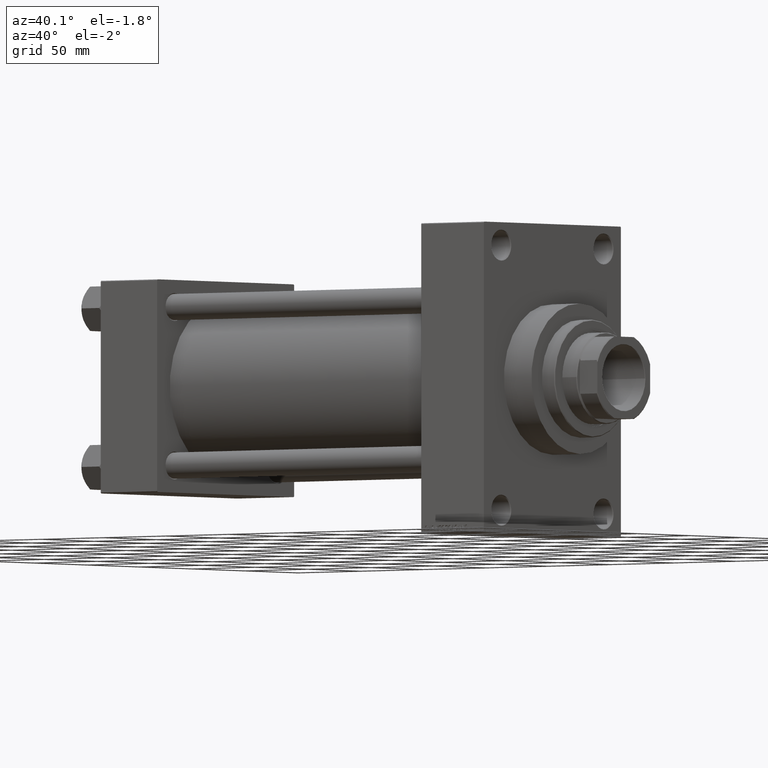
[diagram: clean part render]
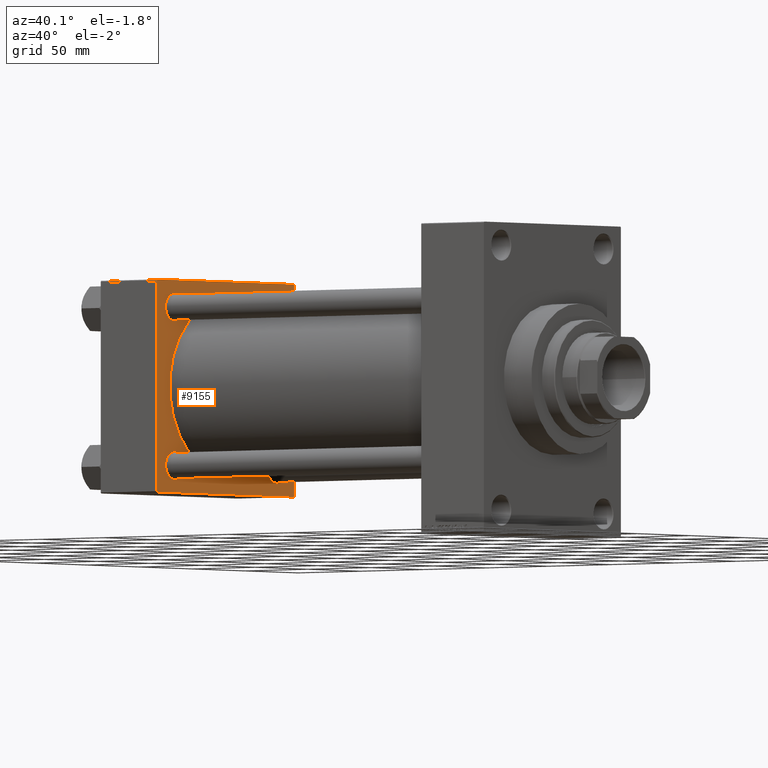
[diagram: same view with one face highlighted and labeled with its STEP entity id]
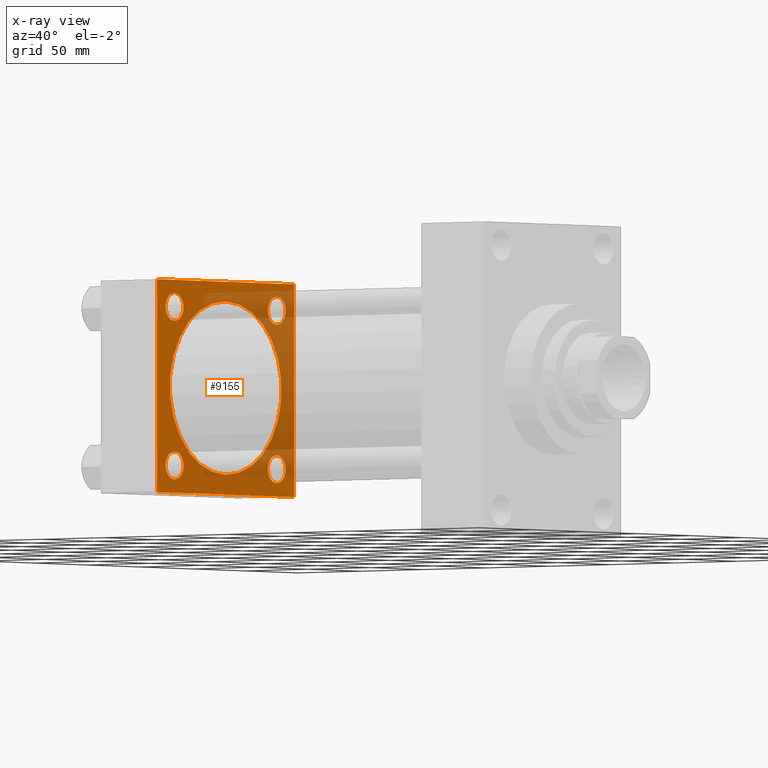
[diagram: x-ray of the same camera — body ghosted, the highlighted face saturated]
A machine part, auxiliary view. The second image highlights one B-rep face of the part: STEP entity #9155.
The next image is the same camera in x-ray: the body ghosted, the highlighted face saturated — about 38% of this face is hidden behind the body in this view.
In plain terms, the highlighted planar face has unit normal (-1, 0, 0).
Its self-contained STEP definition (entity closure, byte-faithful):
#123 = ORIENTED_EDGE ( 'NONE', *, *, #35341, .T. ) ;
#235 = VECTOR ( 'NONE', #887, 1000.000000000000000 ) ;
#833 = LINE ( 'NONE', #45498, #37780 ) ;
#887 = DIRECTION ( 'NONE',  ( 0.000000000000000000, 0.7071067811865279218, -0.7071067811865671127 ) ) ;
#1272 = AXIS2_PLACEMENT_3D ( 'NONE', #44251, #30024, #3681 ) ;
#1369 = AXIS2_PLACEMENT_3D ( 'NONE', #13288, #35504, #2402 ) ;
#1615 = CARTESIAN_POINT ( 'NONE',  ( 45.00000000000000000, -64.49999999999994316, -65.00000000000000000 ) ) ;
#2155 = AXIS2_PLACEMENT_3D ( 'NONE', #34086, #5327, #41092 ) ;
#2214 = EDGE_CURVE ( 'NONE', #22061, #6014, #25947, .T. ) ;
#2402 = DIRECTION ( 'NONE',  ( 0.000000000000000000, 0.000000000000000000, 1.000000000000000000 ) ) ;
#2436 = CARTESIAN_POINT ( 'NONE',  ( 45.00000000000000000, 64.49999999999997158, 65.00000000000001421 ) ) ;
#2495 = DIRECTION ( 'NONE',  ( 0.000000000000000000, 0.000000000000000000, 1.000000000000000000 ) ) ;
#2588 = DIRECTION ( 'NONE',  ( 0.000000000000000000, 0.000000000000000000, -1.000000000000000000 ) ) ;
#2599 = CARTESIAN_POINT ( 'NONE',  ( 45.00000000000000000, 65.00000000000000000, -64.49999999999995737 ) ) ;
#2996 = VERTEX_POINT ( 'NONE', #9589 ) ;
#3234 = CARTESIAN_POINT ( 'NONE',  ( 45.00000000000000000, 48.45000000000000995, 39.95000000000005969 ) ) ;
#3528 = CARTESIAN_POINT ( 'NONE',  ( 45.00000000000000000, 48.45000000000000995, -48.45000000000001705 ) ) ;
#3681 = DIRECTION ( 'NONE',  ( 0.000000000000000000, 0.000000000000000000, 1.000000000000000000 ) ) ;
#4017 = EDGE_CURVE ( 'NONE', #10363, #4951, #35299, .T. ) ;
#4242 = VERTEX_POINT ( 'NONE', #3234 ) ;
#4350 = CARTESIAN_POINT ( 'NONE',  ( 45.00000000000000000, -65.00000000000000000, 64.50000000000000000 ) ) ;
#4388 = CARTESIAN_POINT ( 'NONE',  ( 45.00000000000000000, 65.00000000000000000, 64.49999999999998579 ) ) ;
#4476 = ORIENTED_EDGE ( 'NONE', *, *, #4576, .F. ) ;
#4510 = CARTESIAN_POINT ( 'NONE',  ( 45.00000000000000000, -64.49999999999994316, -65.00000000000000000 ) ) ;
#4576 = EDGE_CURVE ( 'NONE', #47052, #25669, #12176, .T. ) ;
#4664 = EDGE_CURVE ( 'NONE', #22467, #17376, #18329, .T. ) ;
#4951 = VERTEX_POINT ( 'NONE', #42452 ) ;
#5327 = DIRECTION ( 'NONE',  ( 1.000000000000000000, -0.000000000000000000, 0.000000000000000000 ) ) ;
#5489 = EDGE_LOOP ( 'NONE', ( #35040, #42662 ) ) ;
#5691 = CARTESIAN_POINT ( 'NONE',  ( 45.00000000000000000, 48.45000000000000995, -48.45000000000001705 ) ) ;
#6009 = CARTESIAN_POINT ( 'NONE',  ( 45.00000000000000000, -48.44999999999999574, 48.45000000000003126 ) ) ;
#6014 = VERTEX_POINT ( 'NONE', #24525 ) ;
#6462 = VECTOR ( 'NONE', #15435, 1000.000000000000000 ) ;
#7070 = CARTESIAN_POINT ( 'NONE',  ( 45.00000000000000000, -48.44999999999999574, -56.94999999999998153 ) ) ;
#7149 = FACE_BOUND ( 'NONE', #5489, .T. ) ;
#7176 = DIRECTION ( 'NONE',  ( 0.000000000000000000, 0.000000000000000000, 1.000000000000000000 ) ) ;
#7361 = AXIS2_PLACEMENT_3D ( 'NONE', #20439, #12487, #9331 ) ;
#7450 = ORIENTED_EDGE ( 'NONE', *, *, #26268, .F. ) ;
#7725 = EDGE_CURVE ( 'NONE', #12155, #2996, #24584, .T. ) ;
#7947 = CARTESIAN_POINT ( 'NONE',  ( 44.99999999999998579, -2.602085213965210642E-15, 0.000000000000000000 ) ) ;
#8520 = CARTESIAN_POINT ( 'NONE',  ( 45.00000000000000000, -65.00000000000000000, -64.49999999999991473 ) ) ;
#8547 = VERTEX_POINT ( 'NONE', #8520 ) ;
#8905 = AXIS2_PLACEMENT_3D ( 'NONE', #25521, #31826, #7176 ) ;
#9155 = ADVANCED_FACE ( 'NONE', ( #29128, #25495, #40233, #7149, #18258, #36855 ), #32987, .F. ) ;
#9293 = EDGE_LOOP ( 'NONE', ( #36499, #17844 ) ) ;
#9331 = DIRECTION ( 'NONE',  ( 0.000000000000000000, 0.000000000000000000, 1.000000000000000000 ) ) ;
#9589 = CARTESIAN_POINT ( 'NONE',  ( 45.00000000000000000, 65.00000000000000000, -64.49999999999995737 ) ) ;
#9671 = ORIENTED_EDGE ( 'NONE', *, *, #4017, .T. ) ;
#9822 = ORIENTED_EDGE ( 'NONE', *, *, #23560, .F. ) ;
#10363 = VERTEX_POINT ( 'NONE', #42383 ) ;
#11010 = DIRECTION ( 'NONE',  ( -1.000000000000000000, 0.000000000000000000, -0.000000000000000000 ) ) ;
#11648 = VECTOR ( 'NONE', #14110, 1000.000000000000000 ) ;
#12155 = VERTEX_POINT ( 'NONE', #14431 ) ;
#12176 = CIRCLE ( 'NONE', #2155, 53.00000000000000711 ) ;
#12487 = DIRECTION ( 'NONE',  ( -1.000000000000000000, 0.000000000000000000, -0.000000000000000000 ) ) ;
#12942 = DIRECTION ( 'NONE',  ( 0.000000000000000000, 0.000000000000000000, 1.000000000000000000 ) ) ;
#13178 = CARTESIAN_POINT ( 'NONE',  ( 45.00000000000000000, 65.00000000000000000, 65.00000000000001421 ) ) ;
#13225 = EDGE_CURVE ( 'NONE', #42315, #32264, #833, .T. ) ;
#13235 = LINE ( 'NONE', #39073, #13459 ) ;
#13288 = CARTESIAN_POINT ( 'NONE',  ( 45.00000000000000000, -48.44999999999999574, 48.45000000000003126 ) ) ;
#13459 = VECTOR ( 'NONE', #2588, 1000.000000000000000 ) ;
#13582 = DIRECTION ( 'NONE',  ( 0.000000000000000000, -0.7071067811865474617, 0.7071067811865474617 ) ) ;
#13869 = CARTESIAN_POINT ( 'NONE',  ( 45.00000000000000000, 65.00000000000000000, 65.00000000000001421 ) ) ;
#14024 = VERTEX_POINT ( 'NONE', #1615 ) ;
#14110 = DIRECTION ( 'NONE',  ( 0.000000000000000000, -1.000000000000000000, -1.067522139062650425E-16 ) ) ;
#14431 = CARTESIAN_POINT ( 'NONE',  ( 45.00000000000000000, 64.49999999999997158, -64.99999999999998579 ) ) ;
#14626 = DIRECTION ( 'NONE',  ( -0.000000000000000000, 0.000000000000000000, 1.000000000000000000 ) ) ;
#14809 = CARTESIAN_POINT ( 'NONE',  ( 45.00000000000000000, -48.44999999999999574, 39.95000000000007390 ) ) ;
#14935 = EDGE_CURVE ( 'NONE', #17376, #22467, #30132, .T. ) ;
#15185 = DIRECTION ( 'NONE',  ( 1.000000000000000000, -0.000000000000000000, 0.000000000000000000 ) ) ;
#15435 = DIRECTION ( 'NONE',  ( 0.000000000000000000, -1.000000000000000000, -1.067522139062650425E-16 ) ) ;
#15475 = AXIS2_PLACEMENT_3D ( 'NONE', #6009, #35952, #20729 ) ;
#15823 = DIRECTION ( 'NONE',  ( -0.000000000000000000, -0.7071067811865672237, -0.7071067811865279218 ) ) ;
#16889 = ORIENTED_EDGE ( 'NONE', *, *, #2214, .T. ) ;
#17376 = VERTEX_POINT ( 'NONE', #14809 ) ;
#17844 = ORIENTED_EDGE ( 'NONE', *, *, #4664, .T. ) ;
#18012 = VERTEX_POINT ( 'NONE', #2436 ) ;
#18258 = FACE_BOUND ( 'NONE', #42513, .T. ) ;
#18262 = DIRECTION ( 'NONE',  ( 0.000000000000000000, 0.000000000000000000, 1.000000000000000000 ) ) ;
#18329 = CIRCLE ( 'NONE', #1369, 8.499999999999952038 ) ;
#18564 = EDGE_CURVE ( 'NONE', #19980, #4242, #24831, .T. ) ;
#19847 = EDGE_CURVE ( 'NONE', #25669, #47052, #46470, .T. ) ;
#19980 = VERTEX_POINT ( 'NONE', #38587 ) ;
#20439 = CARTESIAN_POINT ( 'NONE',  ( 45.00000000000000000, -48.44999999999999574, -48.45000000000003126 ) ) ;
#20456 = ORIENTED_EDGE ( 'NONE', *, *, #43515, .T. ) ;
#20729 = DIRECTION ( 'NONE',  ( 0.000000000000000000, 0.000000000000000000, 1.000000000000000000 ) ) ;
#20839 = EDGE_CURVE ( 'NONE', #8547, #14024, #22381, .T. ) ;
#21644 = EDGE_LOOP ( 'NONE', ( #9671, #20456 ) ) ;
#21877 = CARTESIAN_POINT ( 'NONE',  ( 45.00000000000000000, 0.000000000000000000, 0.000000000000000000 ) ) ;
#22047 = DIRECTION ( 'NONE',  ( -1.000000000000000000, 0.000000000000000000, -0.000000000000000000 ) ) ;
#22061 = VERTEX_POINT ( 'NONE', #7070 ) ;
#22381 = LINE ( 'NONE', #4510, #235 ) ;
#22467 = VERTEX_POINT ( 'NONE', #47329 ) ;
#22594 = CARTESIAN_POINT ( 'NONE',  ( 45.00000000000000000, -64.49999999999997158, 65.00000000000000000 ) ) ;
#23560 = EDGE_CURVE ( 'NONE', #43724, #2996, #46246, .T. ) ;
#24525 = CARTESIAN_POINT ( 'NONE',  ( 45.00000000000000000, -48.44999999999999574, -39.95000000000007390 ) ) ;
#24584 = LINE ( 'NONE', #2599, #27672 ) ;
#24634 = AXIS2_PLACEMENT_3D ( 'NONE', #21877, #47695, #14626 ) ;
#24831 = CIRCLE ( 'NONE', #28690, 8.499999999999952038 ) ;
#24956 = CARTESIAN_POINT ( 'NONE',  ( 45.00000000000000000, 48.45000000000000995, 48.45000000000001705 ) ) ;
#25495 = FACE_BOUND ( 'NONE', #21644, .T. ) ;
#25521 = CARTESIAN_POINT ( 'NONE',  ( 45.00000000000000000, 48.45000000000000995, 48.45000000000001705 ) ) ;
#25669 = VERTEX_POINT ( 'NONE', #44001 ) ;
#25752 = VECTOR ( 'NONE', #13582, 1000.000000000000114 ) ;
#25947 = CIRCLE ( 'NONE', #1272, 8.499999999999952038 ) ;
#26268 = EDGE_CURVE ( 'NONE', #12155, #14024, #43913, .T. ) ;
#26547 = VECTOR ( 'NONE', #42640, 1000.000000000000000 ) ;
#27082 = EDGE_CURVE ( 'NONE', #43724, #18012, #45942, .T. ) ;
#27446 = EDGE_CURVE ( 'NONE', #32264, #8547, #13235, .T. ) ;
#27550 = EDGE_LOOP ( 'NONE', ( #7450, #30588, #9822, #38478, #123, #35734, #47566, #44393 ) ) ;
#27672 = VECTOR ( 'NONE', #46783, 1000.000000000000114 ) ;
#28315 = CARTESIAN_POINT ( 'NONE',  ( 44.99999999999998579, 3.888542821515762466E-15, -53.00000000000000711 ) ) ;
#28690 = AXIS2_PLACEMENT_3D ( 'NONE', #24956, #22047, #2495 ) ;
#28695 = ORIENTED_EDGE ( 'NONE', *, *, #19847, .F. ) ;
#29128 = FACE_BOUND ( 'NONE', #42576, .T. ) ;
#29675 = DIRECTION ( 'NONE',  ( 0.000000000000000000, 0.000000000000000000, 1.000000000000000000 ) ) ;
#30024 = DIRECTION ( 'NONE',  ( -1.000000000000000000, 0.000000000000000000, -0.000000000000000000 ) ) ;
#30132 = CIRCLE ( 'NONE', #15475, 8.499999999999952038 ) ;
#30588 = ORIENTED_EDGE ( 'NONE', *, *, #7725, .T. ) ;
#31461 = CARTESIAN_POINT ( 'NONE',  ( 45.00000000000000000, 64.49999999999997158, 65.00000000000001421 ) ) ;
#31826 = DIRECTION ( 'NONE',  ( -1.000000000000000000, 0.000000000000000000, -0.000000000000000000 ) ) ;
#31832 = AXIS2_PLACEMENT_3D ( 'NONE', #7947, #15185, #29675 ) ;
#32264 = VERTEX_POINT ( 'NONE', #4350 ) ;
#32987 = PLANE ( 'NONE',  #24634 ) ;
#33061 = CARTESIAN_POINT ( 'NONE',  ( 45.00000000000000000, 65.00000000000000000, -64.99999999999998579 ) ) ;
#34086 = CARTESIAN_POINT ( 'NONE',  ( 44.99999999999998579, -2.602085213965210642E-15, 0.000000000000000000 ) ) ;
#34513 = AXIS2_PLACEMENT_3D ( 'NONE', #3528, #11010, #18262 ) ;
#35040 = ORIENTED_EDGE ( 'NONE', *, *, #44352, .T. ) ;
#35299 = CIRCLE ( 'NONE', #34513, 8.499999999999952038 ) ;
#35341 = EDGE_CURVE ( 'NONE', #18012, #42315, #46938, .T. ) ;
#35419 = ORIENTED_EDGE ( 'NONE', *, *, #45304, .T. ) ;
#35504 = DIRECTION ( 'NONE',  ( -1.000000000000000000, 0.000000000000000000, -0.000000000000000000 ) ) ;
#35734 = ORIENTED_EDGE ( 'NONE', *, *, #13225, .T. ) ;
#35952 = DIRECTION ( 'NONE',  ( -1.000000000000000000, 0.000000000000000000, -0.000000000000000000 ) ) ;
#36499 = ORIENTED_EDGE ( 'NONE', *, *, #14935, .T. ) ;
#36855 = FACE_OUTER_BOUND ( 'NONE', #27550, .T. ) ;
#37780 = VECTOR ( 'NONE', #15823, 1000.000000000000000 ) ;
#38478 = ORIENTED_EDGE ( 'NONE', *, *, #27082, .T. ) ;
#38587 = CARTESIAN_POINT ( 'NONE',  ( 45.00000000000000000, 48.45000000000000995, 56.94999999999996732 ) ) ;
#39073 = CARTESIAN_POINT ( 'NONE',  ( 45.00000000000000000, -65.00000000000000000, 65.00000000000000000 ) ) ;
#39769 = CIRCLE ( 'NONE', #7361, 8.499999999999952038 ) ;
#40233 = FACE_BOUND ( 'NONE', #9293, .T. ) ;
#41092 = DIRECTION ( 'NONE',  ( 0.000000000000000000, 0.000000000000000000, 1.000000000000000000 ) ) ;
#41280 = CIRCLE ( 'NONE', #8905, 8.499999999999952038 ) ;
#42166 = DIRECTION ( 'NONE',  ( -1.000000000000000000, 0.000000000000000000, -0.000000000000000000 ) ) ;
#42315 = VERTEX_POINT ( 'NONE', #22594 ) ;
#42383 = CARTESIAN_POINT ( 'NONE',  ( 45.00000000000000000, 48.45000000000000995, -56.94999999999996732 ) ) ;
#42452 = CARTESIAN_POINT ( 'NONE',  ( 45.00000000000000000, 48.45000000000000995, -39.95000000000005969 ) ) ;
#42513 = EDGE_LOOP ( 'NONE', ( #28695, #4476 ) ) ;
#42576 = EDGE_LOOP ( 'NONE', ( #16889, #35419 ) ) ;
#42640 = DIRECTION ( 'NONE',  ( 0.000000000000000000, 0.000000000000000000, -1.000000000000000000 ) ) ;
#42662 = ORIENTED_EDGE ( 'NONE', *, *, #18564, .T. ) ;
#43515 = EDGE_CURVE ( 'NONE', #4951, #10363, #47363, .T. ) ;
#43724 = VERTEX_POINT ( 'NONE', #4388 ) ;
#43913 = LINE ( 'NONE', #33061, #6462 ) ;
#44001 = CARTESIAN_POINT ( 'NONE',  ( 44.99999999999998579, -2.602085213965210642E-15, 53.00000000000000711 ) ) ;
#44251 = CARTESIAN_POINT ( 'NONE',  ( 45.00000000000000000, -48.44999999999999574, -48.45000000000003126 ) ) ;
#44352 = EDGE_CURVE ( 'NONE', #4242, #19980, #41280, .T. ) ;
#44393 = ORIENTED_EDGE ( 'NONE', *, *, #20839, .T. ) ;
#45304 = EDGE_CURVE ( 'NONE', #6014, #22061, #39769, .T. ) ;
#45498 = CARTESIAN_POINT ( 'NONE',  ( 45.00000000000000000, -65.00000000000000000, 64.50000000000000000 ) ) ;
#45866 = AXIS2_PLACEMENT_3D ( 'NONE', #5691, #42166, #12942 ) ;
#45942 = LINE ( 'NONE', #31461, #25752 ) ;
#46246 = LINE ( 'NONE', #13178, #26547 ) ;
#46470 = CIRCLE ( 'NONE', #31832, 53.00000000000000711 ) ;
#46783 = DIRECTION ( 'NONE',  ( -0.000000000000000000, 0.7071067811865474617, 0.7071067811865474617 ) ) ;
#46938 = LINE ( 'NONE', #13869, #11648 ) ;
#47052 = VERTEX_POINT ( 'NONE', #28315 ) ;
#47329 = CARTESIAN_POINT ( 'NONE',  ( 45.00000000000000000, -48.44999999999999574, 56.94999999999998153 ) ) ;
#47363 = CIRCLE ( 'NONE', #45866, 8.499999999999952038 ) ;
#47566 = ORIENTED_EDGE ( 'NONE', *, *, #27446, .T. ) ;
#47695 = DIRECTION ( 'NONE',  ( -1.000000000000000000, 0.000000000000000000, -0.000000000000000000 ) ) ;